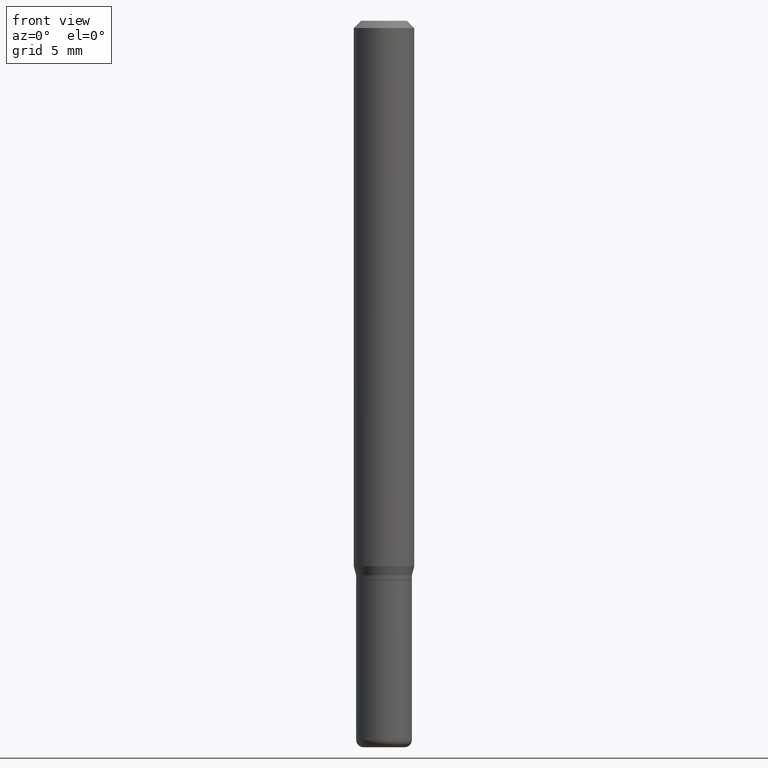
[diagram: clean part render]
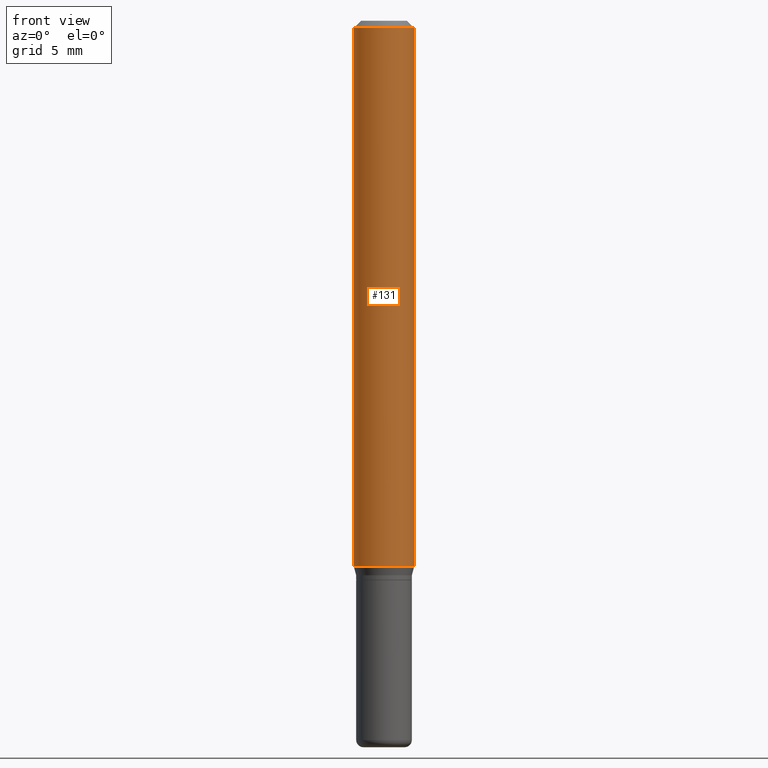
[diagram: same view with one face highlighted and labeled with its STEP entity id]
A machine part, front view. The second image highlights one B-rep face of the part: STEP entity #131.
In plain terms, the highlighted cylindrical surface (edge-blend (fillet) strip) has radius 1.5875 mm, axis along (-0, 0, 1).
Its self-contained STEP definition (entity closure, byte-faithful):
#30 = AXIS2_PLACEMENT_3D ( 'NONE', #172, #221, #415 ) ;
#31 = ORIENTED_EDGE ( 'NONE', *, *, #365, .T. ) ;
#39 = FACE_OUTER_BOUND ( 'NONE', #61, .T. ) ;
#42 = DIRECTION ( 'NONE',  ( -2.445468806185136597E-29, 3.491481338843145583E-15, 1.000000000000000000 ) ) ;
#61 = EDGE_LOOP ( 'NONE', ( #382, #152, #31, #458 ) ) ;
#66 = CIRCLE ( 'NONE', #347, 0.06250000000000000000 ) ;
#82 = CARTESIAN_POINT ( 'NONE',  ( -0.06250000000000000000, -3.488504994374133608E-15, -1.126339745962155803 ) ) ;
#87 = AXIS2_PLACEMENT_3D ( 'NONE', #317, #42, #439 ) ;
#121 = CARTESIAN_POINT ( 'NONE',  ( 0.06250000000000000000, -4.888073874380378612E-16, -0.01499999999999970281 ) ) ;
#123 = DIRECTION ( 'NONE',  ( -2.445468806185136597E-29, 3.491481338843145583E-15, 1.000000000000000000 ) ) ;
#129 = VERTEX_POINT ( 'NONE', #82 ) ;
#130 = CARTESIAN_POINT ( 'NONE',  ( 0.06250000000000000000, -4.369029371579587499E-15, -1.126339745962155803 ) ) ;
#131 = ADVANCED_FACE ( 'NONE', ( #39 ), #240, .T. ) ;
#147 = CIRCLE ( 'NONE', #30, 0.06250000000000000000 ) ;
#152 = ORIENTED_EDGE ( 'NONE', *, *, #234, .T. ) ;
#154 = LINE ( 'NONE', #309, #196 ) ;
#172 = CARTESIAN_POINT ( 'NONE',  ( 3.668203209277632395E-31, -5.237222008264614861E-17, -0.01499999999999970281 ) ) ;
#180 = VERTEX_POINT ( 'NONE', #121 ) ;
#181 = DIRECTION ( 'NONE',  ( -2.445468806185136877E-29, 3.491481338843145188E-15, 1.000000000000000000 ) ) ;
#196 = VECTOR ( 'NONE', #473, 39.37007874015748143 ) ;
#203 = DIRECTION ( 'NONE',  ( 1.000000000000000000, -6.982962677686262766E-15, 0.000000000000000000 ) ) ;
#221 = DIRECTION ( 'NONE',  ( -2.445468806185136597E-29, 3.491481338843145583E-15, 1.000000000000000000 ) ) ;
#234 = EDGE_CURVE ( 'NONE', #129, #293, #66, .T. ) ;
#240 = CYLINDRICAL_SURFACE ( 'NONE', #87, 0.06250000000000000000 ) ;
#263 = CARTESIAN_POINT ( 'NONE',  ( -0.06250000000000000000, -1.548394002303358444E-15, -0.01499999999999970281 ) ) ;
#268 = VECTOR ( 'NONE', #181, 39.37007874015748143 ) ;
#293 = VERTEX_POINT ( 'NONE', #130 ) ;
#309 = CARTESIAN_POINT ( 'NONE',  ( -0.06250000000000000000, 4.440892098500626162E-16, -3.074334431409316114E-30 ) ) ;
#317 = CARTESIAN_POINT ( 'NONE',  ( 0.000000000000000000, 0.000000000000000000, 0.000000000000000000 ) ) ;
#319 = VERTEX_POINT ( 'NONE', #263 ) ;
#347 = AXIS2_PLACEMENT_3D ( 'NONE', #372, #123, #203 ) ;
#362 = EDGE_CURVE ( 'NONE', #319, #180, #147, .T. ) ;
#365 = EDGE_CURVE ( 'NONE', #293, #180, #457, .T. ) ;
#372 = CARTESIAN_POINT ( 'NONE',  ( 2.754428713916943180E-29, -3.932594204224195830E-15, -1.126339745962155803 ) ) ;
#382 = ORIENTED_EDGE ( 'NONE', *, *, #502, .F. ) ;
#415 = DIRECTION ( 'NONE',  ( 1.000000000000000000, -6.982962677686266711E-15, 0.000000000000000000 ) ) ;
#418 = CARTESIAN_POINT ( 'NONE',  ( 0.06250000000000000000, -4.364351673553916694E-16, 3.047610484872459871E-30 ) ) ;
#439 = DIRECTION ( 'NONE',  ( 1.000000000000000000, -6.982962677686266711E-15, 4.876176775795935793E-29 ) ) ;
#457 = LINE ( 'NONE', #418, #268 ) ;
#458 = ORIENTED_EDGE ( 'NONE', *, *, #362, .F. ) ;
#473 = DIRECTION ( 'NONE',  ( -2.445468806185136877E-29, 3.491481338843145188E-15, 1.000000000000000000 ) ) ;
#502 = EDGE_CURVE ( 'NONE', #129, #319, #154, .T. ) ;